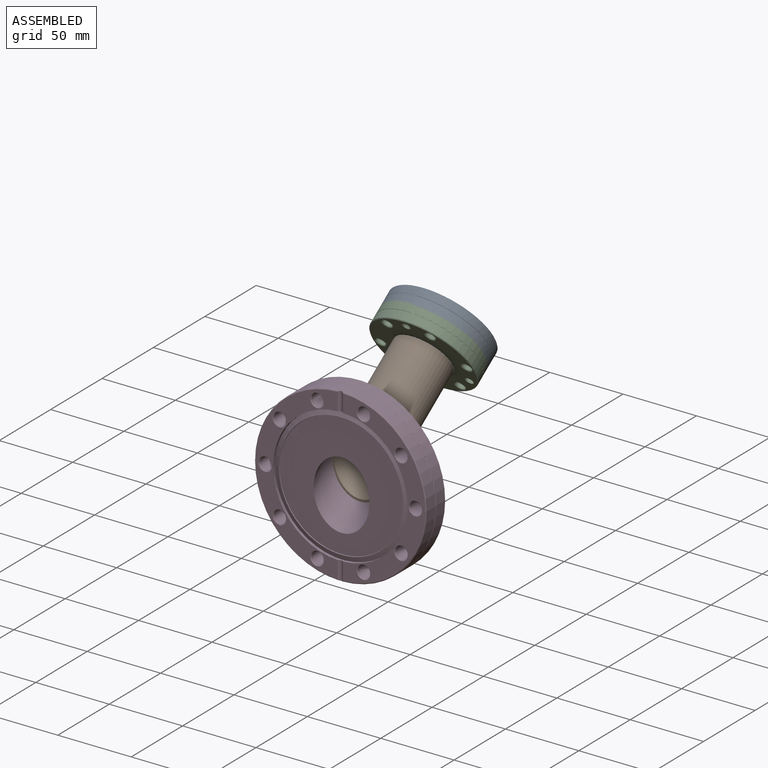
[diagram: assembled view]
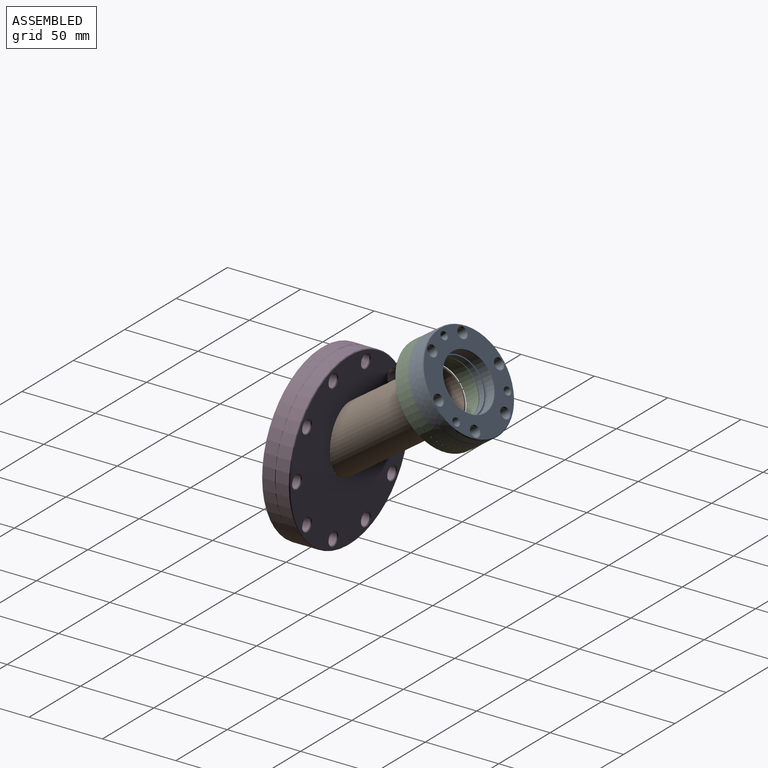
[diagram: assembled view, second angle]
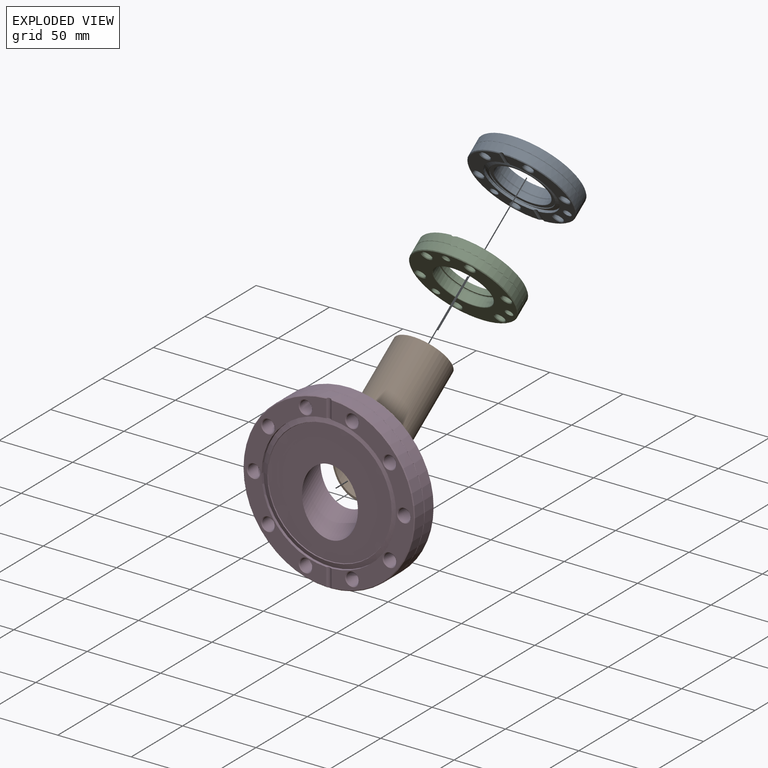
[diagram: exploded view]
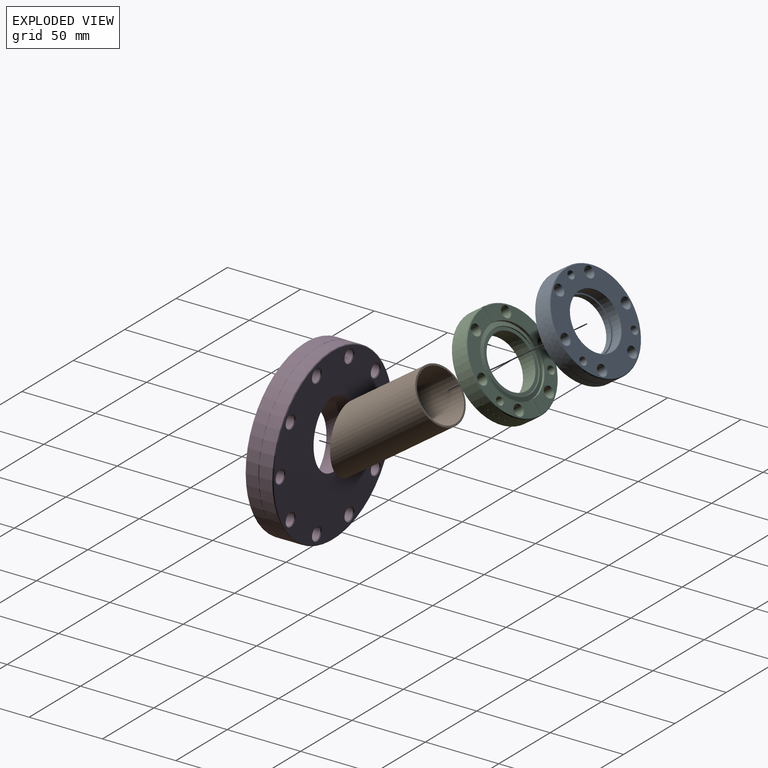
[diagram: exploded view, second angle]
ASSEMBLY  parts=4 mates=3
PART A: 45 faces, bbox 75.3x12.7x75.3 mm
  f0: cylinder r=34.54mm len=69.09mm, axis (0,-1,0), area 1172.5mm2, adj f1,f2,f5,f11,f36
  f1: cylinder r=2.38mm len=10.46mm, axis (0,0,1), area 41.3mm2, adj f0,f2,f3,f4,f5,f6
  f2: cone r=34.54mm half-angle=45deg, axis (0,1,0), area 75.3mm2, adj f0,f1,f3,f11
  f3: plane 67.98x32.27mm, normal (0,-1,0), area 704.3mm2, adj f1,f2,f4,f11,f12,f15,f18,f41
  f4: cylinder r=24.13mm len=48.26mm, axis (0,1,0), area 275.3mm2, adj f1,f3,f6,f11,f38
  f5: cone r=34.54mm half-angle=45deg, axis (0,1,0), area 75.3mm2, adj f0,f1,f6,f11
  f6: plane 67.98x32.27mm, normal (0,-1,0), area 704.3mm2, adj f1,f4,f5,f11,f21,f24,f27,f42
  f7: cylinder r=34.54mm len=69.09mm, axis (0,-1,0), area 1172.5mm2, adj f33,f36
  f8: plane 68.07x68.07mm, normal (0,1,0), area 2067.2mm2, adj f13,f16,f19,f22,f25,f28,f30,f33
  f9: cylinder r=19.18mm len=38.35mm, axis (0,1,0), area 696.9mm2, adj f30,f35
  f10: cylinder r=18.29mm len=36.58mm, axis (0,-1,0), area 423.2mm2, adj f31,f32
  f11: cylinder r=2.38mm len=10.46mm, axis (0,0,-1), area 41.3mm2, adj f0,f2,f3,f4,f5,f6
  f12: cone r=3.87mm half-angle=45deg, axis (0,-1,0), area 16.3mm2, adj f3,f14
  f13: cone r=3.37mm half-angle=45deg, axis (0,1,0), area 16.3mm2, adj f8,f14
  f14: cylinder r=3.37mm len=11.68mm, axis (0,-1,0), area 247.1mm2, adj f12,f13
  f15: cone r=3.87mm half-angle=45deg, axis (0,-1,0), area 16.3mm2, adj f3,f17
  f16: cone r=3.37mm half-angle=45deg, axis (0,1,0), area 16.3mm2, adj f8,f17
  f17: cylinder r=3.37mm len=11.68mm, axis (0,-1,0), area 247.1mm2, adj f15,f16
  f18: cone r=3.87mm half-angle=45deg, axis (0,-1,0), area 16.3mm2, adj f3,f20
  f19: cone r=3.37mm half-angle=45deg, axis (0,1,0), area 16.3mm2, adj f8,f20
  f20: cylinder r=3.37mm len=11.68mm, axis (0,-1,0), area 247.1mm2, adj f18,f19
  f21: cone r=3.87mm half-angle=45deg, axis (0,-1,0), area 16.3mm2, adj f6,f23
  f22: cone r=3.37mm half-angle=45deg, axis (0,1,0), area 16.3mm2, adj f8,f23
  f23: cylinder r=3.37mm len=11.68mm, axis (0,-1,0), area 247.1mm2, adj f21,f22
  f24: cone r=3.87mm half-angle=45deg, axis (0,-1,0), area 16.3mm2, adj f6,f26
  f25: cone r=3.37mm half-angle=45deg, axis (0,1,0), area 16.3mm2, adj f8,f26
  f26: cylinder r=3.37mm len=11.68mm, axis (0,-1,0), area 247.1mm2, adj f24,f25
  f27: cone r=3.87mm half-angle=45deg, axis (0,-1,0), area 16.3mm2, adj f6,f29
  f28: cone r=3.37mm half-angle=45deg, axis (0,1,0), area 16.3mm2, adj f8,f29
  f29: cylinder r=3.37mm len=11.68mm, axis (0,-1,0), area 247.1mm2, adj f27,f28
  f30: torus R=19.69mm, axis (0,1,0), area 97.1mm2, adj f8,f9
  f31: torus R=18.49mm, axis (0,-1,0), area 36.8mm2, adj f10,f40
  f32: torus R=18.54mm, axis (0,1,0), area 46.1mm2, adj f10,f39
  f33: cone r=34.04mm half-angle=45deg, axis (0,-1,0), area 154.8mm2, adj f7,f8
  f34: torus R=19.18mm, axis (0,-1,0), area 99.1mm2, adj f35,f40
  f35: cone r=19.18mm half-angle=32deg, axis (0,-1,0), area 74.1mm2, adj f9,f34
  f36: torus R=34.8mm, axis (0,-1,0), area 229.8mm2, adj f0,f7
  f37: cone r=20.96mm half-angle=20deg, axis (0,-1,0), area 70.9mm2, adj f38,f39
  f38: cone r=24.13mm half-angle=70deg, axis (0,1,0), area 478.6mm2, adj f4,f37
  f39: plane 41.54x41.54mm, normal (0,-1,0), area 275.2mm2, adj f32,f37
  f40: plane 38.35x38.35mm, normal (0,1,0), area 81.2mm2, adj f31,f34
  f41: cylinder r=2.78mm len=12.7mm, axis (0,1,0), area 221.7mm2, adj f3,f8
  f42: cylinder r=2.78mm len=12.7mm, axis (0,1,0), area 221.7mm2, adj f6,f8
  f43: cone r=0mm half-angle=59deg, axis (0,1,0), area 0mm2, adj f44
  f44: revolved ~5.47x5.47mm, area 41.5mm2, adj f8,f43
PART B: 4 faces, bbox 38.1x38.1x88.9 mm
  f0: cylinder r=17.78mm len=88.02mm, axis (0,0,-1), area 8441.2mm2, adj f2,f3
  f1: cylinder r=19.05mm len=88.9mm, axis (0,0,-1), area 9044.2mm2, adj f2,f3
  f2: plane 38.1x38.1mm, normal (0,0,1), area 146.9mm2, adj f0,f1
  f3: plane 38.1x38.1mm, normal (0,-0.57,-0.82), area 179.4mm2, adj f0,f1
PART C: same geometry as A
PART D: 46 faces, bbox 127x61.7x127 mm
  f0: cylinder r=58.42mm len=116.84mm, axis (0,-1,0), area 3148.3mm2, adj f1,f2,f5,f11,f12
  f1: cylinder r=2.38mm len=12.6mm, axis (0,0,1), area 49.8mm2, adj f0,f2,f3,f4,f5,f6
  f2: cone r=58.42mm half-angle=45deg, axis (0,1,0), area 129.2mm2, adj f0,f1,f3,f12
  f3: plane 115.77x56.14mm, normal (0,-1,0), area 1573.1mm2, adj f1,f2,f4,f12,f13,f16,f19,f22
  f4: cylinder r=45.85mm len=91.69mm, axis (0,1,0), area 555.1mm2, adj f1,f3,f6,f12,f42
  f5: cone r=58.42mm half-angle=45deg, axis (0,1,0), area 129.2mm2, adj f0,f1,f6,f12
  f6: plane 115.77x56.14mm, normal (0,-1,0), area 1573.1mm2, adj f1,f4,f5,f12,f28,f31,f34,f37
  f7: cylinder r=58.42mm len=116.84mm, axis (0,-1,0), area 3148.3mm2, adj f8,f11
  f8: cone r=57.91mm half-angle=45deg, axis (0,-1,0), area 262.6mm2, adj f7,f9
  f9: plane 115.82x115.82mm, normal (0,1,0), area 8443.2mm2, adj f8,f14,f17,f20,f23,f26,f29,f32
  f10: cylinder r=4.22mm len=18.03mm, axis (0,-1,0), area 477.8mm2, adj f40,f41
  f11: torus R=58.67mm, axis (0,-1,0), area 389.4mm2, adj f0,f7
  f12: cylinder r=2.38mm len=12.6mm, axis (0,0,-1), area 49.8mm2, adj f0,f2,f3,f4,f5,f6
  f13: cone r=4.72mm half-angle=45deg, axis (0,-1,0), area 20.2mm2, adj f3,f15
  f14: cone r=4.22mm half-angle=45deg, axis (0,1,0), area 20.2mm2, adj f9,f15
  f15: cylinder r=4.22mm len=18.03mm, axis (0,-1,0), area 477.8mm2, adj f13,f14
  f16: cone r=4.72mm half-angle=45deg, axis (0,-1,0), area 20.2mm2, adj f3,f18
  f17: cone r=4.22mm half-angle=45deg, axis (0,1,0), area 20.2mm2, adj f9,f18
  f18: cylinder r=4.22mm len=18.03mm, axis (0,-1,0), area 477.8mm2, adj f16,f17
  f19: cone r=4.72mm half-angle=45deg, axis (0,-1,0), area 20.2mm2, adj f3,f21
  f20: cone r=4.22mm half-angle=45deg, axis (0,1,0), area 20.2mm2, adj f9,f21
  f21: cylinder r=4.22mm len=18.03mm, axis (0,-1,0), area 477.8mm2, adj f19,f20
  f22: cone r=4.72mm half-angle=45deg, axis (0,-1,0), area 20.2mm2, adj f3,f24
  f23: cone r=4.22mm half-angle=45deg, axis (0,1,0), area 20.2mm2, adj f9,f24
  f24: cylinder r=4.22mm len=18.03mm, axis (0,-1,0), area 477.8mm2, adj f22,f23
  f25: cone r=4.72mm half-angle=45deg, axis (0,-1,0), area 20.2mm2, adj f3,f27
  f26: cone r=4.22mm half-angle=45deg, axis (0,1,0), area 20.2mm2, adj f9,f27
  f27: cylinder r=4.22mm len=18.03mm, axis (0,-1,0), area 477.8mm2, adj f25,f26
  f28: cone r=4.72mm half-angle=45deg, axis (0,-1,0), area 20.2mm2, adj f6,f30
  f29: cone r=4.22mm half-angle=45deg, axis (0,1,0), area 20.2mm2, adj f9,f30
  f30: cylinder r=4.22mm len=18.03mm, axis (0,-1,0), area 477.8mm2, adj f28,f29
  f31: cone r=4.72mm half-angle=45deg, axis (0,-1,0), area 20.2mm2, adj f6,f33
  f32: cone r=4.22mm half-angle=45deg, axis (0,1,0), area 20.2mm2, adj f9,f33
  f33: cylinder r=4.22mm len=18.03mm, axis (0,-1,0), area 477.8mm2, adj f31,f32
  f34: cone r=4.72mm half-angle=45deg, axis (0,-1,0), area 20.2mm2, adj f6,f36
  f35: cone r=4.22mm half-angle=45deg, axis (0,1,0), area 20.2mm2, adj f9,f36
  f36: cylinder r=4.22mm len=18.03mm, axis (0,-1,0), area 477.8mm2, adj f34,f35
  f37: cone r=4.72mm half-angle=45deg, axis (0,-1,0), area 20.2mm2, adj f6,f39
  f38: cone r=4.22mm half-angle=45deg, axis (0,1,0), area 20.2mm2, adj f9,f39
  f39: cylinder r=4.22mm len=18.03mm, axis (0,-1,0), area 477.8mm2, adj f37,f38
  f40: cone r=4.72mm half-angle=45deg, axis (0,-1,0), area 20.2mm2, adj f6,f10
  f41: cone r=4.22mm half-angle=45deg, axis (0,1,0), area 20.2mm2, adj f9,f10
  f42: cone r=45.85mm half-angle=70deg, axis (0,1,0), area 1026.3mm2, adj f4,f43
  f43: cone r=42.37mm half-angle=20deg, axis (0,-1,0), area 143.6mm2, adj f42,f44
  f44: plane 84.36x84.36mm, normal (0,-1,0), area 4198.1mm2, adj f43,f45
  f45: cylinder r=19.05mm len=61.75mm, axis (0,0.82,-0.57), area 2613mm2, adj f9,f44
PLACE A rot(axis=(1,0,0),35deg) t=(16.75,246.08,79.77)mm
PLACE B rot(axis=(-1,0,0),55deg) t=(16.75,159.16,18.89)mm
PLACE C rot(axis=(0,0.3,-0.95),180deg) t=(16.75,237.18,73.53)mm
PLACE D rot(axis=(0,1,0),180deg) t=(16.75,160.56,19.87)mm
MATE revolute A.f4 <-> C.f4  axis (0,-0.82,-0.57) through (16.75,241.84,76.79)mm
MATE fastened B.f3 <-> D.f9  axis (0,-1,0) through (16.75,170.08,26.54)mm
MATE fastened C.f9 <-> B.f0  axis (0,-0.82,-0.57) through (16.75,231.98,69.89)mm
